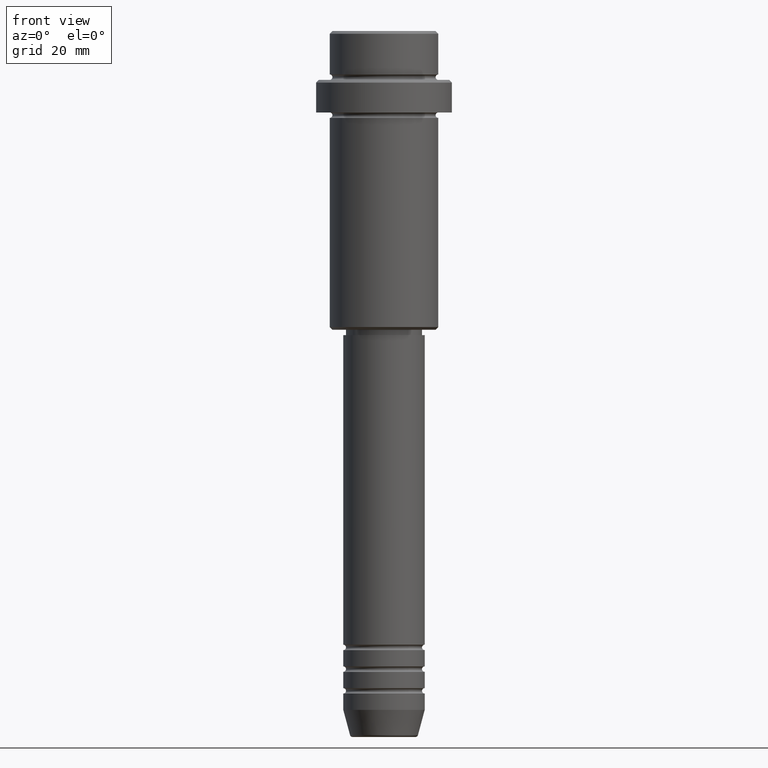
[diagram: clean part render]
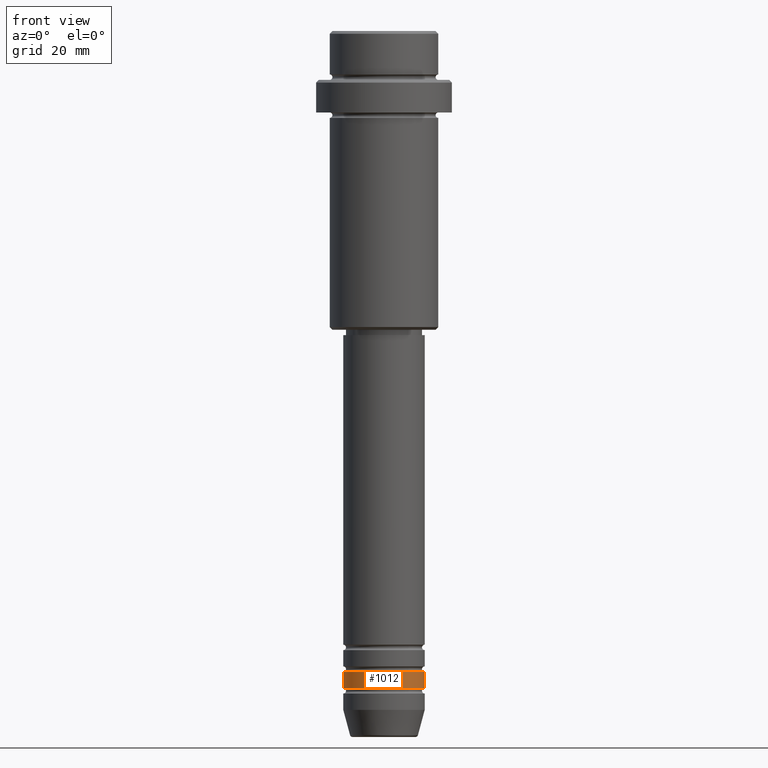
[diagram: same view with one face highlighted and labeled with its STEP entity id]
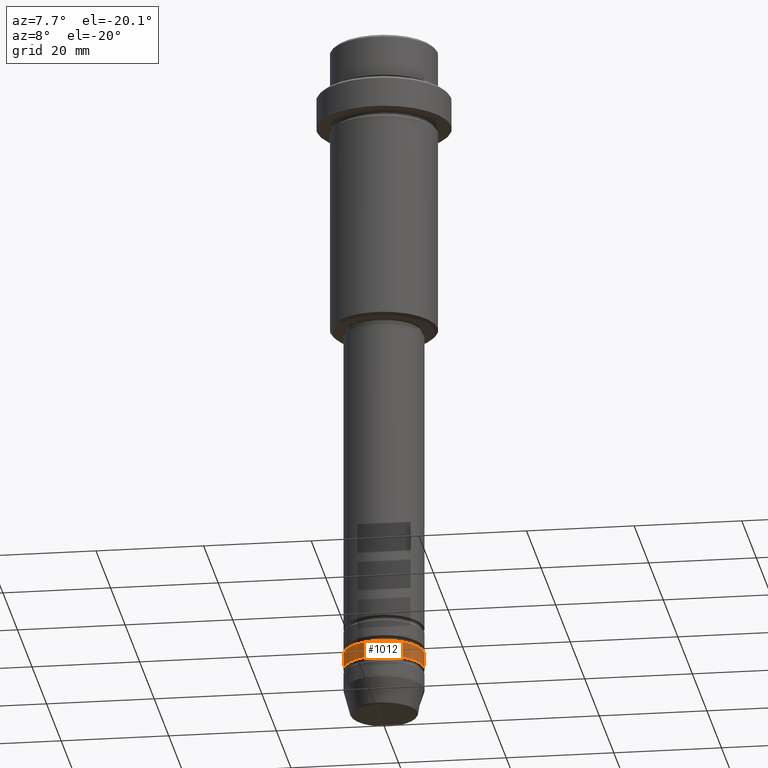
[diagram: same view with one face highlighted and labeled with its STEP entity id]
A machine part, front view. The second image highlights one B-rep face of the part: STEP entity #1012.
A second angle (auxiliary view) of the same face is appended — the face is thin or edge-on in the first view.
In plain terms, the highlighted cylindrical surface (partial cylindrical patch) has radius 7.5 mm, axis along (-0, -0, 1).
Its self-contained STEP definition (entity closure, byte-faithful):
#73 = FACE_OUTER_BOUND ( 'NONE', #513, .T. ) ;
#85 = CARTESIAN_POINT ( 'NONE',  ( -7.500000000000000000, 9.184850993605147944E-16, -120.9999999999998579 ) ) ;
#147 = VECTOR ( 'NONE', #1111, 1000.000000000000000 ) ;
#208 = CARTESIAN_POINT ( 'NONE',  ( 7.500000000000000000, 0.000000000000000000, 0.000000000000000000 ) ) ;
#225 = VERTEX_POINT ( 'NONE', #780 ) ;
#281 = CARTESIAN_POINT ( 'NONE',  ( 0.000000000000000000, 0.000000000000000000, -120.9999999999998579 ) ) ;
#302 = DIRECTION ( 'NONE',  ( -0.000000000000000000, -0.000000000000000000, 1.000000000000000000 ) ) ;
#312 = LINE ( 'NONE', #208, #701 ) ;
#329 = AXIS2_PLACEMENT_3D ( 'NONE', #281, #1151, #1030 ) ;
#366 = CARTESIAN_POINT ( 'NONE',  ( -7.500000000000000000, 9.184850993605147944E-16, -117.9999999999998863 ) ) ;
#399 = ORIENTED_EDGE ( 'NONE', *, *, #899, .T. ) ;
#412 = CARTESIAN_POINT ( 'NONE',  ( 0.000000000000000000, 0.000000000000000000, -117.9999999999998863 ) ) ;
#420 = CIRCLE ( 'NONE', #329, 7.500000000000000000 ) ;
#443 = CARTESIAN_POINT ( 'NONE',  ( 7.500000000000000000, 0.000000000000000000, -117.9999999999998863 ) ) ;
#513 = EDGE_LOOP ( 'NONE', ( #804, #399, #838, #613 ) ) ;
#600 = EDGE_CURVE ( 'NONE', #1336, #1116, #1240, .T. ) ;
#611 = VERTEX_POINT ( 'NONE', #85 ) ;
#613 = ORIENTED_EDGE ( 'NONE', *, *, #600, .F. ) ;
#617 = EDGE_CURVE ( 'NONE', #225, #1116, #312, .T. ) ;
#637 = AXIS2_PLACEMENT_3D ( 'NONE', #412, #1271, #1167 ) ;
#657 = CARTESIAN_POINT ( 'NONE',  ( -7.500000000000000000, 9.184850993605147944E-16, 0.000000000000000000 ) ) ;
#701 = VECTOR ( 'NONE', #856, 1000.000000000000000 ) ;
#772 = AXIS2_PLACEMENT_3D ( 'NONE', #984, #302, #1070 ) ;
#780 = CARTESIAN_POINT ( 'NONE',  ( 7.500000000000000000, 0.000000000000000000, -120.9999999999998579 ) ) ;
#804 = ORIENTED_EDGE ( 'NONE', *, *, #1152, .F. ) ;
#838 = ORIENTED_EDGE ( 'NONE', *, *, #617, .T. ) ;
#856 = DIRECTION ( 'NONE',  ( -0.000000000000000000, -0.000000000000000000, 1.000000000000000000 ) ) ;
#899 = EDGE_CURVE ( 'NONE', #611, #225, #420, .T. ) ;
#984 = CARTESIAN_POINT ( 'NONE',  ( 0.000000000000000000, 0.000000000000000000, 0.000000000000000000 ) ) ;
#1001 = LINE ( 'NONE', #657, #147 ) ;
#1012 = ADVANCED_FACE ( 'NONE', ( #73 ), #1177, .T. ) ;
#1030 = DIRECTION ( 'NONE',  ( 1.000000000000000000, 0.000000000000000000, 0.000000000000000000 ) ) ;
#1070 = DIRECTION ( 'NONE',  ( 1.000000000000000000, 0.000000000000000000, 0.000000000000000000 ) ) ;
#1111 = DIRECTION ( 'NONE',  ( -0.000000000000000000, -0.000000000000000000, 1.000000000000000000 ) ) ;
#1116 = VERTEX_POINT ( 'NONE', #443 ) ;
#1151 = DIRECTION ( 'NONE',  ( -0.000000000000000000, -0.000000000000000000, 1.000000000000000000 ) ) ;
#1152 = EDGE_CURVE ( 'NONE', #611, #1336, #1001, .T. ) ;
#1167 = DIRECTION ( 'NONE',  ( 1.000000000000000000, 0.000000000000000000, 0.000000000000000000 ) ) ;
#1177 = CYLINDRICAL_SURFACE ( 'NONE', #772, 7.500000000000000000 ) ;
#1240 = CIRCLE ( 'NONE', #637, 7.500000000000000000 ) ;
#1271 = DIRECTION ( 'NONE',  ( -0.000000000000000000, -0.000000000000000000, 1.000000000000000000 ) ) ;
#1336 = VERTEX_POINT ( 'NONE', #366 ) ;